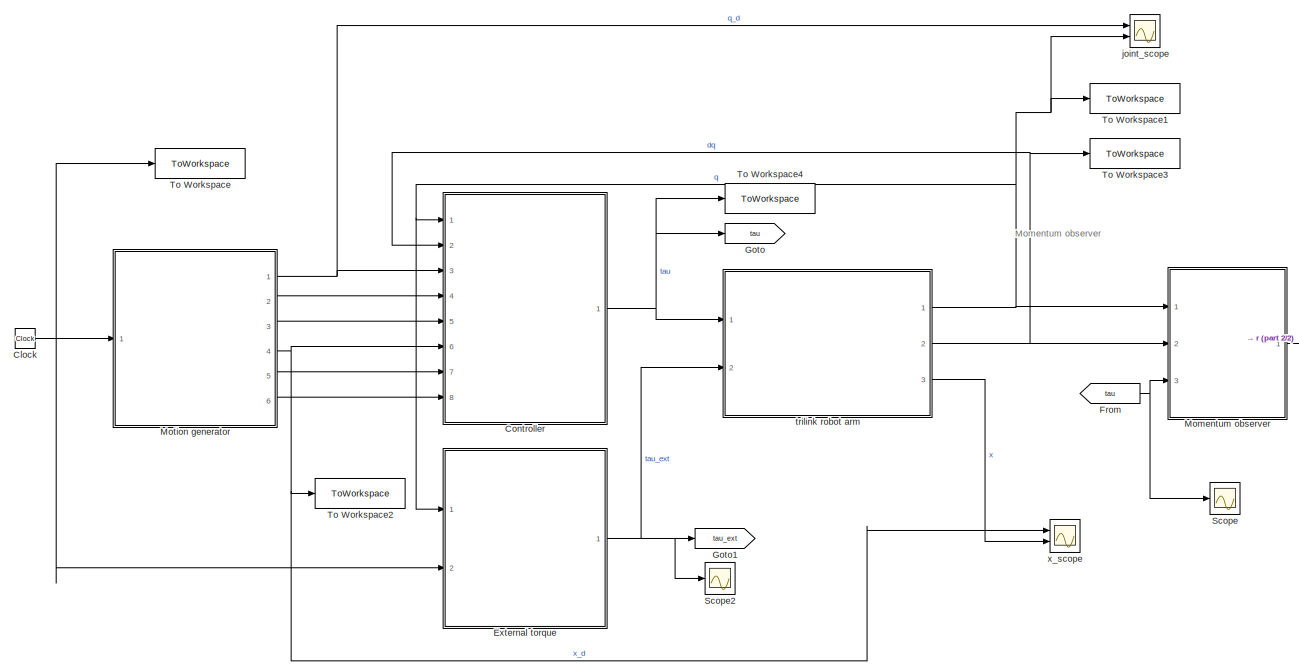
[diagram: root canvas - part 1/2, most of the canvas]
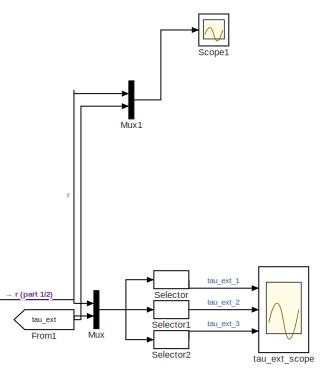
[diagram: root canvas - part 2/2, middle right region]
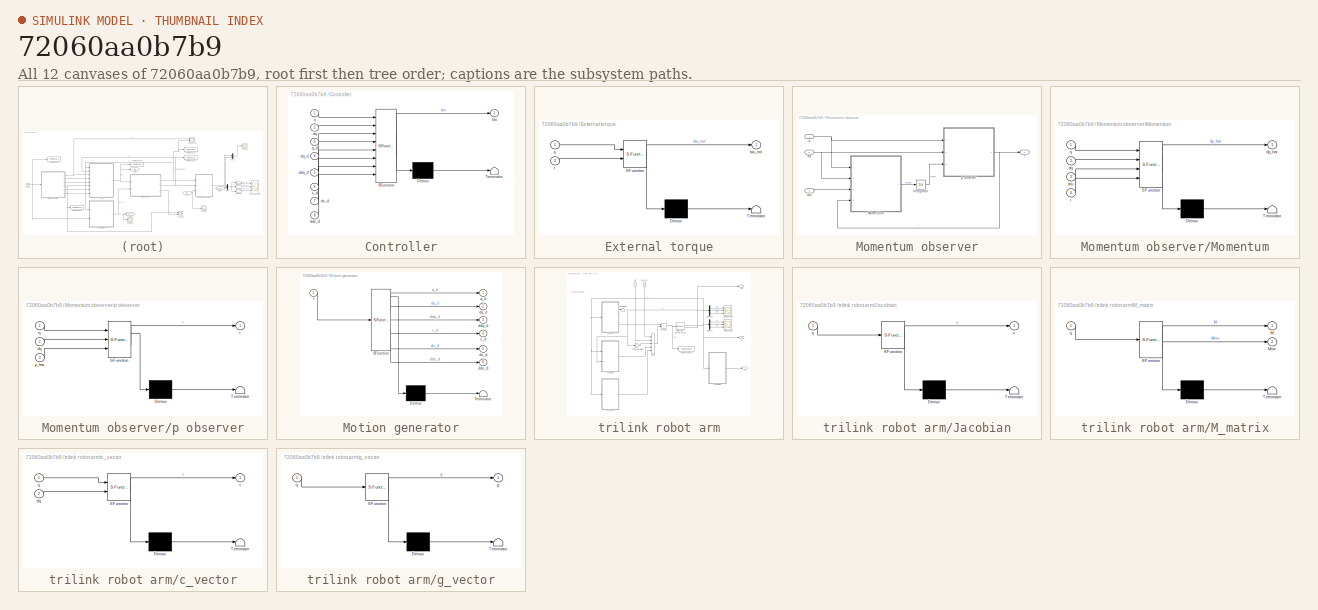
[diagram: thumbnail index - all 12 canvases of the model, root first then tree order]
MODEL slx_72060aa0b7b9
KIND model
CONFIG AbsTol = auto
CONFIG EnableMultiTasking = on
CONFIG FixedStep = params.sample_time
CONFIG MaxStep = auto
CONFIG MinStep = auto
CONFIG RelTol = 1e-3
CONFIG SampleTimeConstraint = Unconstrained
CONFIG Solver = ode4
CONFIG SolverName = ode4
CONFIG StartTime = 0.0
CONFIG StopTime = 15
BLOCK [Clock] Clock
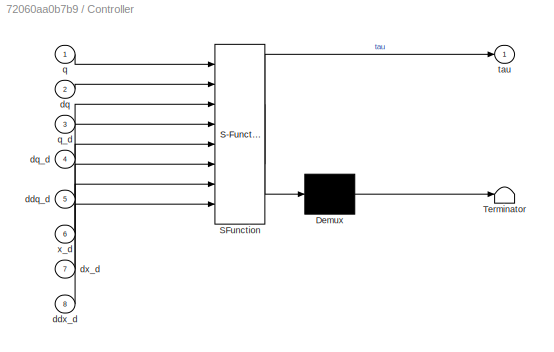
BLOCK [SubSystem] Controller
  ErrorFcn = Stateflow.Translate.translate
  PermitHierarchicalResolution = ExplicitOnly
  Ports = [8, 1]
  RequestExecContextInheritance = off
  SFBlockType = MATLAB Function
  TreatAsAtomicUnit = on
BLOCK [Demux] Controller/ Demux 
  Outputs = 1
  Ports = [1, 1]
BLOCK [S-Function] Controller/ SFunction 
  EnableBusSupport = on
  FunctionName = sf_sfun
  Parameters = params
  PortCounts = [8 2]
  Ports = [8, 2]
  SFcnIsStateOwnerBlock = off
  SFunctionDeploymentMode = off
  Tag = Stateflow S-Function 2
BLOCK [Terminator] Controller/ Terminator 
BLOCK [Inport] Controller/ddq_d
  Port = 5
BLOCK [Inport] Controller/ddx_d
  Port = 8
BLOCK [Inport] Controller/dq
  Port = 2
BLOCK [Inport] Controller/dq_d
  Port = 4
BLOCK [Inport] Controller/dx_d
  Port = 7
BLOCK [Inport] Controller/q
BLOCK [Inport] Controller/q_d
  Port = 3
BLOCK [Outport] Controller/tau
BLOCK [Inport] Controller/x_d
  Port = 6
BLOCK [SubSystem] External torque
  ErrorFcn = Stateflow.Translate.translate
  PermitHierarchicalResolution = ExplicitOnly
  Ports = [2, 1]
  RequestExecContextInheritance = off
  SFBlockType = MATLAB Function
  TreatAsAtomicUnit = on
BLOCK [Demux] External torque/ Demux 
  Outputs = 1
  Ports = [1, 1]
BLOCK [S-Function] External torque/ SFunction 
  EnableBusSupport = on
  FunctionName = sf_sfun
  Parameters = params
  PortCounts = [2 2]
  Ports = [2, 2]
  SFcnIsStateOwnerBlock = off
  SFunctionDeploymentMode = off
  Tag = Stateflow S-Function 1
BLOCK [Terminator] External torque/ Terminator 
BLOCK [Inport] External torque/q
BLOCK [Inport] External torque/t
  Port = 2
BLOCK [Outport] External torque/tau_ext
BLOCK [From] From
  GotoTag = tau
BLOCK [From] From1
  GotoTag = tau_ext
BLOCK [Goto] Goto
  GotoTag = tau
BLOCK [Goto] Goto1
  GotoTag = tau_ext
BLOCK [SubSystem] Momentum observer
  Ports = [3, 1]
  RequestExecContextInheritance = off
BLOCK [Integrator] Momentum observer/Integrator
  InitialCondition = zeros(3,1)
  Ports = [1, 1]
BLOCK [SubSystem] Momentum observer/Momentum
  ErrorFcn = Stateflow.Translate.translate
  PermitHierarchicalResolution = ExplicitOnly
  Ports = [4, 1]
  RequestExecContextInheritance = off
  SFBlockType = MATLAB Function
  TreatAsAtomicUnit = on
BLOCK [Demux] Momentum observer/Momentum/ Demux 
  Outputs = 1
  Ports = [1, 1]
BLOCK [S-Function] Momentum observer/Momentum/ SFunction 
  EnableBusSupport = on
  FunctionName = sf_sfun
  Parameters = params
  PortCounts = [4 2]
  Ports = [4, 2]
  SFcnIsStateOwnerBlock = off
  SFunctionDeploymentMode = off
  Tag = Stateflow S-Function 3
BLOCK [Terminator] Momentum observer/Momentum/ Terminator 
BLOCK [Outport] Momentum observer/Momentum/dp_hat
BLOCK [Inport] Momentum observer/Momentum/dq
  Port = 2
BLOCK [Inport] Momentum observer/Momentum/q
BLOCK [Inport] Momentum observer/Momentum/r
  Port = 4
BLOCK [Inport] Momentum observer/Momentum/tau
  Port = 3
BLOCK [Inport] Momentum observer/dq
  Port = 2
BLOCK [SubSystem] Momentum observer/p observer
  ErrorFcn = Stateflow.Translate.translate
  PermitHierarchicalResolution = ExplicitOnly
  Ports = [3, 1]
  RequestExecContextInheritance = off
  SFBlockType = MATLAB Function
  TreatAsAtomicUnit = on
BLOCK [Demux] Momentum observer/p observer/ Demux 
  Outputs = 1
  Ports = [1, 1]
BLOCK [S-Function] Momentum observer/p observer/ SFunction 
  EnableBusSupport = on
  FunctionName = sf_sfun
  Parameters = params
  PortCounts = [3 2]
  Ports = [3, 2]
  SFcnIsStateOwnerBlock = off
  SFunctionDeploymentMode = off
  Tag = Stateflow S-Function 8
BLOCK [Terminator] Momentum observer/p observer/ Terminator 
BLOCK [Inport] Momentum observer/p observer/dq
  Port = 2
BLOCK [Inport] Momentum observer/p observer/p_hat
  Port = 3
BLOCK [Inport] Momentum observer/p observer/q
BLOCK [Outport] Momentum observer/p observer/r
BLOCK [Inport] Momentum observer/q
BLOCK [Outport] Momentum observer/r
BLOCK [Inport] Momentum observer/tau
  Port = 3
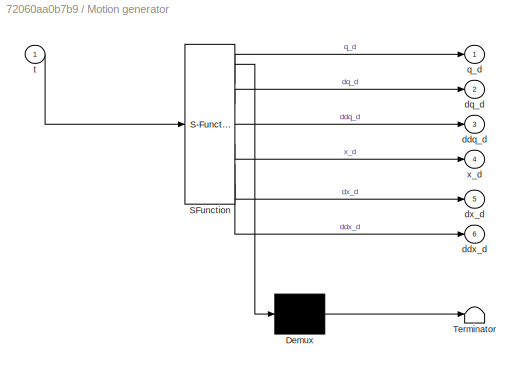
BLOCK [SubSystem] Motion generator
  ErrorFcn = Stateflow.Translate.translate
  PermitHierarchicalResolution = ExplicitOnly
  Ports = [1, 6]
  RequestExecContextInheritance = off
  SFBlockType = MATLAB Function
  TreatAsAtomicUnit = on
BLOCK [Demux] Motion generator/ Demux 
  Outputs = 1
  Ports = [1, 1]
BLOCK [S-Function] Motion generator/ SFunction 
  EnableBusSupport = on
  FunctionName = sf_sfun
  Parameters = params
  PortCounts = [1 7]
  Ports = [1, 7]
  SFcnIsStateOwnerBlock = off
  SFunctionDeploymentMode = off
  Tag = Stateflow S-Function 7
BLOCK [Terminator] Motion generator/ Terminator 
BLOCK [Outport] Motion generator/ddq_d
  Port = 3
BLOCK [Outport] Motion generator/ddx_d
  Port = 6
BLOCK [Outport] Motion generator/dq_d
  Port = 2
BLOCK [Outport] Motion generator/dx_d
  Port = 5
BLOCK [Outport] Motion generator/q_d
BLOCK [Inport] Motion generator/t
BLOCK [Outport] Motion generator/x_d
  Port = 4
BLOCK [Mux] Mux
  DisplayOption = bar
  Inputs = 2
  Ports = [2, 1]
BLOCK [Mux] Mux1
  DisplayOption = bar
  Inputs = 2
  Ports = [2, 1]
BLOCK [Scope] Scope
  Floating = off
  NumInputPorts = 1
  Ports = [1]
  ScopeSpecificationString = Simulink.scopes.TimeScopeBlockCfg('CurrentConfiguration', extmgr.ConfigurationSet(extmgr.Configuration('Core','General UI',true),extmgr.Configuration('Core','Source UI',true),extmgr.Configuration('Sources','WiredSimulink',true,'DataLoggingVariableName','ScopeData1'),extmgr.Configuration('Visuals','Time Domain',true,'SerializedDisplays',{struct('MinYLimReal','-296.03767','MaxYLimReal','342.22468','...<+1427ch>
BLOCK [Scope] Scope1
  Floating = off
  NumInputPorts = 1
  Ports = [1]
  ScopeSpecificationString = Simulink.scopes.TimeScopeBlockCfg('CurrentConfiguration', extmgr.ConfigurationSet(extmgr.Configuration('Core','General UI',true),extmgr.Configuration('Core','Source UI',true),extmgr.Configuration('Sources','WiredSimulink',true,'DataLoggingVariableName','ScopeData2'),extmgr.Configuration('Visuals','Time Domain',true,'SerializedDisplays',{struct('MinYLimReal','-36.25','MaxYLimReal','26.25','YLabelRe...<+1571ch>
BLOCK [Scope] Scope2
  Floating = off
  NumInputPorts = 1
  Ports = [1]
  ScopeSpecificationString = Simulink.scopes.TimeScopeBlockCfg('CurrentConfiguration', extmgr.ConfigurationSet(extmgr.Configuration('Core','General UI',true),extmgr.Configuration('Core','Source UI',true),extmgr.Configuration('Sources','WiredSimulink',true,'DataLoggingVariableName','ScopeData3'),extmgr.Configuration('Visuals','Time Domain',true,'SerializedDisplays',{struct('MinYLimReal','-1.00000','MaxYLimReal','1.00000','YLab...<+1419ch>
BLOCK [Selector] Selector
  IndexOptions = Index vector (dialog)
  Indices = [1 4]
  InputPortWidth = 6
  OutputSizes = 1
  Ports = [1, 1]
BLOCK [Selector] Selector1
  IndexOptions = Index vector (dialog)
  Indices = [2 5]
  InputPortWidth = 6
  OutputSizes = 1
  Ports = [1, 1]
BLOCK [Selector] Selector2
  IndexOptions = Index vector (dialog)
  Indices = [3 6]
  InputPortWidth = 6
  OutputSizes = 1
  Ports = [1, 1]
BLOCK [ToWorkspace] To Workspace
  FixptAsFi = on
  MaxDataPoints = inf
  Ports = [1]
  SampleTime = -1
  Save2DSignal = 2-D array (concatenate along first dimension)
  VariableName = Time
BLOCK [ToWorkspace] To Workspace1
  FixptAsFi = on
  MaxDataPoints = inf
  Ports = [1]
  SampleTime = -1
  Save2DSignal = 2-D array (concatenate along first dimension)
  VariableName = Q
BLOCK [ToWorkspace] To Workspace2
  FixptAsFi = on
  MaxDataPoints = inf
  Ports = [1]
  SampleTime = -1
  Save2DSignal = 2-D array (concatenate along first dimension)
  VariableName = X_d
BLOCK [ToWorkspace] To Workspace3
  FixptAsFi = on
  MaxDataPoints = inf
  Ports = [1]
  SampleTime = -1
  Save2DSignal = 2-D array (concatenate along first dimension)
  VariableName = dQ
BLOCK [ToWorkspace] To Workspace4
  FixptAsFi = on
  MaxDataPoints = inf
  Ports = [1]
  SampleTime = -1
  Save2DSignal = 2-D array (concatenate along first dimension)
  VariableName = Tau
BLOCK [Scope] joint_scope
  Floating = off
  NumInputPorts = 2
  Ports = [2]
  ScopeSpecificationString = Simulink.scopes.TimeScopeBlockCfg('CurrentConfiguration', extmgr.ConfigurationSet(extmgr.Configuration('Core','General UI',true,'FigureColor',[0 0 0]),extmgr.Configuration('Core','Source UI',true),extmgr.Configuration('Sources','WiredSimulink',true,'DataLoggingVariableName','ScopeData1'),extmgr.Configuration('Visuals','Time Domain',true,'SerializedDisplays',{struct('MinYLimReal','-6.44987','MaxYLi...<+1818ch>
BLOCK [Scope] tau_ext_scope
  Floating = off
  NumInputPorts = 3
  Ports = [3]
  ScopeSpecificationString = Simulink.scopes.TimeScopeBlockCfg('CurrentConfiguration', extmgr.ConfigurationSet(extmgr.Configuration('Core','General UI',true,'FigureColor',[0 0 0]),extmgr.Configuration('Core','Source UI',true),extmgr.Configuration('Sources','WiredSimulink',true,'DataLoggingVariableName','ScopeData2'),extmgr.Configuration('Visuals','Time Domain',true,'SerializedDisplays',{struct('MinYLimReal','-1.00000','MaxYLi...<+3533ch>
BLOCK [SubSystem] trilink robot arm
  Ports = [2, 3]
  RequestExecContextInheritance = off
  UserDataPersistent = on
BLOCK [Demux] trilink robot arm/Demux1
  Outputs = 3
  Ports = [1, 3]
BLOCK [Demux] trilink robot arm/Demux5
  Outputs = 3
  Ports = [1, 3]
BLOCK [SecondOrderIntegrator] trilink robot arm/Integrator, Second-Order
  ICDXDT = params.dq0
  ICX = params.q0
  Ports = [1, 2]
BLOCK [SubSystem] trilink robot arm/Jacobian
  ErrorFcn = Stateflow.Translate.translate
  PermitHierarchicalResolution = ExplicitOnly
  Ports = [1, 1]
  RequestExecContextInheritance = off
  SFBlockType = MATLAB Function
  TreatAsAtomicUnit = on
BLOCK [Demux] trilink robot arm/Jacobian/ Demux 
  Outputs = 1
  Ports = [1, 1]
BLOCK [S-Function] trilink robot arm/Jacobian/ SFunction 
  EnableBusSupport = on
  FunctionName = sf_sfun
  Parameters = params
  PortCounts = [1 2]
  Ports = [1, 2]
  SFcnIsStateOwnerBlock = off
  SFunctionDeploymentMode = off
  Tag = Stateflow S-Function 9
BLOCK [Terminator] trilink robot arm/Jacobian/ Terminator 
BLOCK [Inport] trilink robot arm/Jacobian/q
BLOCK [Outport] trilink robot arm/Jacobian/x
  VectorParamsAs1DForOutWhenUnconnected = off
BLOCK [Scope] trilink robot arm/Joint_scope
  Floating = off
  NumInputPorts = 3
  Ports = [3]
  ScopeSpecificationString = Simulink.scopes.TimeScopeBlockCfg('CurrentConfiguration', extmgr.ConfigurationSet(extmgr.Configuration('Core','General UI',true,'FigureColor',[0 0 0]),extmgr.Configuration('Core','Source UI',true),extmgr.Configuration('Sources','WiredSimulink',true),extmgr.Configuration('Visuals','Time Domain',true,'SerializedDisplays',{struct('MinYLimReal','-4.94593','MaxYLimReal','2.58499','YLabelReal','q_i(t)',...<+1810ch>
BLOCK [SubSystem] trilink robot arm/M_matrix
  ErrorFcn = Stateflow.Translate.translate
  PermitHierarchicalResolution = ExplicitOnly
  Ports = [1, 2]
  RequestExecContextInheritance = off
  SFBlockType = MATLAB Function
  TreatAsAtomicUnit = on
BLOCK [Demux] trilink robot arm/M_matrix/ Demux 
  Outputs = 1
  Ports = [1, 1]
BLOCK [S-Function] trilink robot arm/M_matrix/ SFunction 
  EnableBusSupport = on
  FunctionName = sf_sfun
  Parameters = params
  PortCounts = [1 3]
  Ports = [1, 3]
  SFcnIsStateOwnerBlock = off
  SFunctionDeploymentMode = off
  Tag = Stateflow S-Function 6
BLOCK [Terminator] trilink robot arm/M_matrix/ Terminator 
BLOCK [Outport] trilink robot arm/M_matrix/M
  VectorParamsAs1DForOutWhenUnconnected = off
BLOCK [Outport] trilink robot arm/M_matrix/Minv
  Port = 2
  VectorParamsAs1DForOutWhenUnconnected = off
BLOCK [Inport] trilink robot arm/M_matrix/q
BLOCK [Product] trilink robot arm/Product
  Multiplication = Matrix(*)
  Ports = [2, 1]
BLOCK [Sum] trilink robot arm/Sum2
  IconShape = rectangular
  Inputs = ++|---
  Ports = [5, 1]
BLOCK [Terminator] trilink robot arm/Terminator
BLOCK [ToWorkspace] trilink robot arm/To Workspace3
  FixptAsFi = on
  MaxDataPoints = inf
  Ports = [1]
  SampleTime = -1
  Save2DSignal = 2-D array (concatenate along first dimension)
  VariableName = ddQ
BLOCK [Gain] trilink robot arm/Viscous Friction
  Gain = 0
BLOCK [SubSystem] trilink robot arm/c_vector
  ErrorFcn = Stateflow.Translate.translate
  PermitHierarchicalResolution = ExplicitOnly
  Ports = [2, 1]
  RequestExecContextInheritance = off
  SFBlockType = MATLAB Function
  TreatAsAtomicUnit = on
BLOCK [Demux] trilink robot arm/c_vector/ Demux 
  Outputs = 1
  Ports = [1, 1]
BLOCK [S-Function] trilink robot arm/c_vector/ SFunction 
  EnableBusSupport = on
  FunctionName = sf_sfun
  Parameters = params
  PortCounts = [2 2]
  Ports = [2, 2]
  SFcnIsStateOwnerBlock = off
  SFunctionDeploymentMode = off
  Tag = Stateflow S-Function 4
BLOCK [Terminator] trilink robot arm/c_vector/ Terminator 
BLOCK [Outport] trilink robot arm/c_vector/c
  VectorParamsAs1DForOutWhenUnconnected = off
BLOCK [Inport] trilink robot arm/c_vector/dq
  Port = 2
BLOCK [Inport] trilink robot arm/c_vector/q
BLOCK [Scope] trilink robot arm/dJoint_scope
  Floating = off
  NumInputPorts = 3
  Ports = [3]
  ScopeSpecificationString = Simulink.scopes.TimeScopeBlockCfg('CurrentConfiguration', extmgr.ConfigurationSet(extmgr.Configuration('Core','General UI',true,'FigureColor',[0 0 0]),extmgr.Configuration('Core','Source UI',true),extmgr.Configuration('Sources','WiredSimulink',true,'DataLoggingVariableName','ScopeData1'),extmgr.Configuration('Visuals','Time Domain',true,'SerializedDisplays',{struct('MinYLimReal','-23.61564','MaxYL...<+1852ch>
BLOCK [Outport] trilink robot arm/dq 
  Port = 2
BLOCK [SubSystem] trilink robot arm/g_vector
  ErrorFcn = Stateflow.Translate.translate
  PermitHierarchicalResolution = ExplicitOnly
  Ports = [1, 1]
  RequestExecContextInheritance = off
  SFBlockType = MATLAB Function
  TreatAsAtomicUnit = on
BLOCK [Demux] trilink robot arm/g_vector/ Demux 
  Outputs = 1
  Ports = [1, 1]
BLOCK [S-Function] trilink robot arm/g_vector/ SFunction 
  EnableBusSupport = on
  FunctionName = sf_sfun
  Parameters = params
  PortCounts = [1 2]
  Ports = [1, 2]
  SFcnIsStateOwnerBlock = off
  SFunctionDeploymentMode = off
  Tag = Stateflow S-Function 5
BLOCK [Terminator] trilink robot arm/g_vector/ Terminator 
BLOCK [Outport] trilink robot arm/g_vector/g
  VectorParamsAs1DForOutWhenUnconnected = off
BLOCK [Inport] trilink robot arm/g_vector/q
BLOCK [Outport] trilink robot arm/q 
BLOCK [Inport] trilink robot arm/tau
  NameLocation = left
BLOCK [Inport] trilink robot arm/tau_ext
  NameLocation = left
  Port = 2
BLOCK [Outport] trilink robot arm/x
  Port = 3
BLOCK [Scope] x_scope
  Floating = off
  NumInputPorts = 2
  Ports = [2]
  ScopeSpecificationString = Simulink.scopes.TimeScopeBlockCfg('CurrentConfiguration', extmgr.ConfigurationSet(extmgr.Configuration('Core','General UI',true,'FigureColor',[0 0 0]),extmgr.Configuration('Core','Source UI',true),extmgr.Configuration('Sources','WiredSimulink',true,'DataLoggingVariableName','ScopeData1'),extmgr.Configuration('Visuals','Time Domain',true,'SerializedDisplays',{struct('MinYLimReal','-0.3','MaxYLimRea...<+2091ch>
ANNOTATION (root): Momentum observer
ANNOTATION trilink robot arm: Forward dynamics
NET Clock:1 -> External torque:2, Motion generator:1, To Workspace:1
NET Controller:1 -> Goto:1, To Workspace4:1, trilink robot arm:1
NET External torque:1 -> Goto1:1, Scope2:1, trilink robot arm:2
NET From1:1 -> Mux1:2, Mux:2
NET From:1 -> Momentum observer:3, Scope:1
LINE Momentum observer/Integrator:1 -> Momentum observer/p observer:3
LINE Momentum observer/Momentum:1 -> Momentum observer/Integrator:1
NET Momentum observer/dq:1 -> Momentum observer/Momentum:2, Momentum observer/p observer:2
NET Momentum observer/p observer:1 -> Momentum observer/Momentum:4, Momentum observer/r:1
NET Momentum observer/q:1 -> Momentum observer/Momentum:1, Momentum observer/p observer:1
LINE Momentum observer/tau:1 -> Momentum observer/Momentum:3
NET Momentum observer:1 -> Mux1:1, Mux:1
NET Motion generator:1 -> Controller:3, joint_scope:1
LINE Motion generator:2 -> Controller:4
LINE Motion generator:3 -> Controller:5
NET Motion generator:4 -> Controller:6, To Workspace2:1, x_scope:1
LINE Motion generator:5 -> Controller:7
LINE Motion generator:6 -> Controller:8
LINE Mux1:1 -> Scope1:1
NET Mux:1 -> Selector1:1, Selector2:1, Selector:1
LINE Selector1:1 -> tau_ext_scope:2
LINE Selector2:1 -> tau_ext_scope:3
LINE Selector:1 -> tau_ext_scope:1
LINE trilink robot arm/Demux1:1 -> trilink robot arm/Joint_scope:1
LINE trilink robot arm/Demux1:2 -> trilink robot arm/Joint_scope:2
LINE trilink robot arm/Demux1:3 -> trilink robot arm/Joint_scope:3
LINE trilink robot arm/Demux5:1 -> trilink robot arm/dJoint_scope:1
LINE trilink robot arm/Demux5:2 -> trilink robot arm/dJoint_scope:2
LINE trilink robot arm/Demux5:3 -> trilink robot arm/dJoint_scope:3
NET trilink robot arm/Integrator, Second-Order:1 -> trilink robot arm/Demux1:1, trilink robot arm/Jacobian:1, trilink robot arm/M_matrix:1, trilink robot arm/c_vector:1, trilink robot arm/g_vector:1, trilink robot arm/q :1
NET trilink robot arm/Integrator, Second-Order:2 -> trilink robot arm/Demux5:1, trilink robot arm/Viscous Friction:1, trilink robot arm/c_vector:2, trilink robot arm/dq :1
LINE trilink robot arm/Jacobian:1 -> trilink robot arm/x:1
LINE trilink robot arm/M_matrix:1 -> trilink robot arm/Terminator:1
LINE trilink robot arm/M_matrix:2 -> trilink robot arm/Product:1
NET trilink robot arm/Product:1 -> trilink robot arm/Integrator, Second-Order:1, trilink robot arm/To Workspace3:1
LINE trilink robot arm/Sum2:1 -> trilink robot arm/Product:2
LINE trilink robot arm/Viscous Friction:1 -> trilink robot arm/Sum2:3
LINE trilink robot arm/c_vector:1 -> trilink robot arm/Sum2:4
LINE trilink robot arm/g_vector:1 -> trilink robot arm/Sum2:5
LINE trilink robot arm/tau:1 -> trilink robot arm/Sum2:2
LINE trilink robot arm/tau_ext:1 -> trilink robot arm/Sum2:1
NET trilink robot arm:1 -> Controller:1, External torque:1, Momentum observer:1, To Workspace1:1, joint_scope:2
NET trilink robot arm:2 -> Controller:2, Momentum observer:2, To Workspace3:1
LINE trilink robot arm:3 -> x_scope:2
note: NET lines group one-source signal fan-out (src -> all destinations, sorted); 1:1 wires keep LINE
CHART trilink robot arm/Jacobian states=1 transitions=1
  STATE_LABEL 'eML_blk_kernel()'
  STATE_LABEL 'SCRIPT:\nfunction x = fkinematics(q, params)\n%     J  = planar3R_Jac(q,params);\n    x    = planar3R_fkin(q,params);\nend'
CHART External torque states=1 transitions=1
  STATE_LABEL 'eML_blk_kernel()'
  STATE_LABEL 'SCRIPT:\nfunction tau_ext = exernal_torque(q, t, params)\n    tau_ext = calc_tau_ext(q, params, t);\nend\n\n'
CHART Controller states=1 transitions=1
  STATE_LABEL 'eML_blk_kernel()'
  STATE_LABEL 'SCRIPT:\nfunction tau = controller(q, dq, q_d, dq_d, ddq_d, x_d, dx_d, ddx_d, params)\n    t  = 0;\n    switch params.controller\n        case 0\n            % PD controller\n            tau = ctrl_PD(t,q,q_d,dq,dq_d);\n        case 1\n            % Impedance controller (redundant, translation only)\n            tau = ctrl_imp_R(t,q,dq,x_d,dx_d,ddx_d,params);\n        case 2\n            % Impedance controll...<+202ch>'
CHART Momentum observer/Momentum states=1 transitions=1
  STATE_LABEL 'eML_blk_kernel()'
  STATE_LABEL 'SCRIPT:\nfunction dp_hat = momentum_estimate(q, dq, tau, r, params)\n    dp_hat = calc_dp_hat(q, dq, tau, r, params);\nend\n\n'
CHART trilink robot arm/c_vector states=1 transitions=1
  STATE_LABEL 'eML_blk_kernel()'
  STATE_LABEL 'SCRIPT:\nfunction c = c_vector(q, dq, params)\n    if params.flag_reg\n        c = planar3R_C_reg(q, dq, params)*dq;\n    else\n        c = planar3R_c(q, dq, params.pkin(1:2), params.m, params.rSges, params.Icges);\n    end'
CHART trilink robot arm/g_vector states=1 transitions=1
  STATE_LABEL 'eML_blk_kernel()'
  STATE_LABEL 'SCRIPT:\nfunction g = g_vector(q, params)\n    if params.flag_reg\n        g = planar3R_g_reg(q, params);\n    else\n        g = planar3R_g(q, params.g_base, params.pkin(1:2), params.m, params.rSges);\n    end'
CHART trilink robot arm/M_matrix states=1 transitions=1
  STATE_LABEL 'eML_blk_kernel()'
  STATE_LABEL 'SCRIPT:\nfunction [M, Minv] = M_matrix(q, params)\n    if params.flag_reg\n        M    = planar3R_M_reg(q,params);\n    else\n        M    = planar3R_M(q,params.pkin(1:2), params.m, params.rSges, params.Icges);\n    end\n    Minv = pinv(M);\n\n\n'
CHART Motion generator states=1 transitions=1
  STATE_LABEL 'eML_blk_kernel()'
  STATE_LABEL 'SCRIPT:\nfunction [q_d, dq_d, ddq_d, x_d, dx_d, ddx_d] = desired_trajectory(t, params)\n    [q_d, dq_d, ddq_d, x_d, dx_d, ddx_d] = motion_generator(t, params);\nend\n\n'
CHART Momentum observer/p observer states=1 transitions=1
  STATE_LABEL 'eML_blk_kernel()'
  STATE_LABEL 'SCRIPT:\nfunction r = residual(q,dq, p_hat, params)\n    r = p_observer(q,dq, p_hat, params);\nend\n\n'
CHART  states=0 transitions=0
CHART  states=0 transitions=0
CHART  states=0 transitions=0
CHART  states=0 transitions=0
CHART  states=0 transitions=0
CHART  states=0 transitions=0
CHART  states=0 transitions=0
CHART  states=0 transitions=0
CHART  states=0 transitions=0
